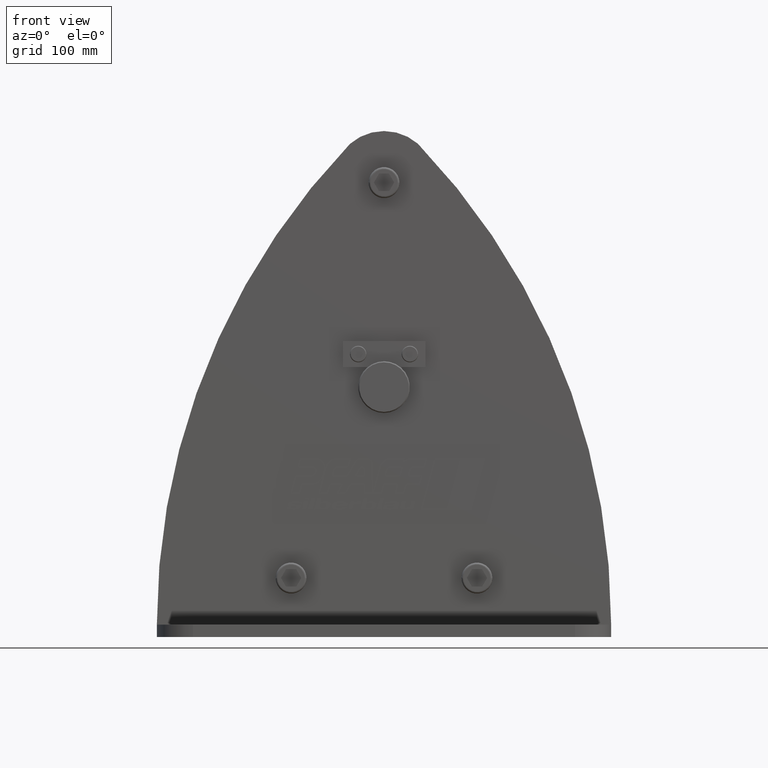
[diagram: clean part render]
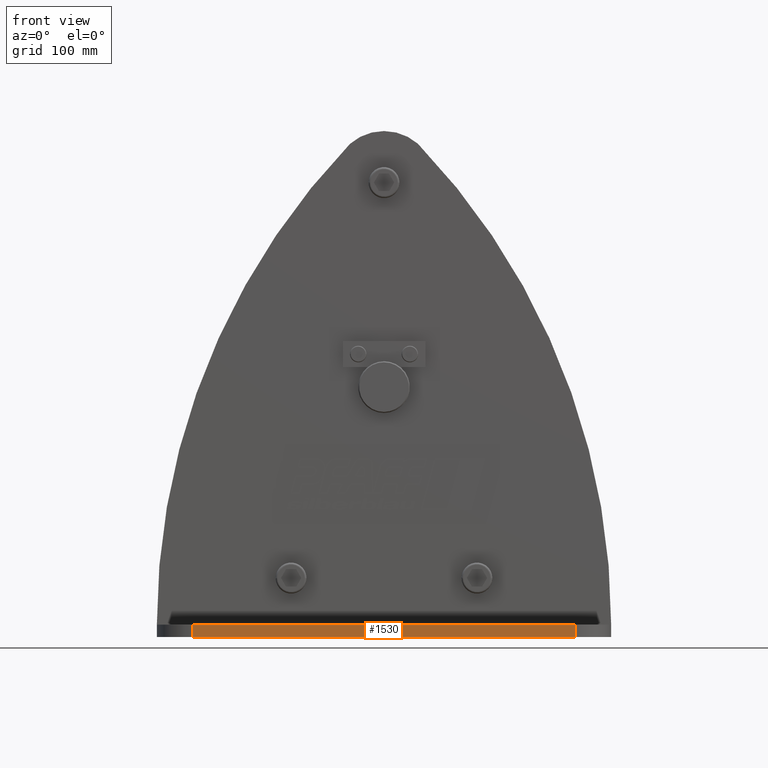
[diagram: same view with one face highlighted and labeled with its STEP entity id]
A machine part, front view. The second image highlights one B-rep face of the part: STEP entity #1530.
In plain terms, the highlighted planar face has unit normal (0, -1, 0).
Its self-contained STEP definition (entity closure, byte-faithful):
#1530=ADVANCED_FACE('',(#3320),#3321,.T.);
#3320=FACE_OUTER_BOUND('',#5352,.T.);
#3321=PLANE('',#5353);
#5352=EDGE_LOOP('',(#10185,#10186,#10187,#10188));
#5353=AXIS2_PLACEMENT_3D('',#10189,#10190,#10191);
#10185=ORIENTED_EDGE('',*,*,#13889,.T.);
#10186=ORIENTED_EDGE('',*,*,#13895,.F.);
#10187=ORIENTED_EDGE('',*,*,#13864,.T.);
#10188=ORIENTED_EDGE('',*,*,#13893,.T.);
#10189=CARTESIAN_POINT('',(0.0,-130.5,-242.0));
#10190=DIRECTION('',(0.0,-1.0,0.0));
#10191=DIRECTION('',(1.0,0.0,0.0));
#13864=EDGE_CURVE('',#17220,#17218,#17221,.T.);
#13889=EDGE_CURVE('',#17257,#17258,#17259,.T.);
#13893=EDGE_CURVE('',#17218,#17257,#17263,.T.);
#13895=EDGE_CURVE('',#17220,#17258,#17265,.T.);
#17218=VERTEX_POINT('',#24771);
#17220=VERTEX_POINT('',#24773);
#17221=LINE('',#24774,#24775);
#17257=VERTEX_POINT('',#24824);
#17258=VERTEX_POINT('',#24825);
#17259=LINE('',#24826,#24827);
#17263=LINE('',#24831,#24832);
#17265=LINE('',#24834,#24835);
#24771=CARTESIAN_POINT('',(184.999999999992,-130.5,-242.0));
#24773=CARTESIAN_POINT('',(-184.999999999992,-130.5,-242.0));
#24774=CARTESIAN_POINT('',(-185.0,-130.5,-242.0));
#24775=VECTOR('',#28987,1.0);
#24824=CARTESIAN_POINT('',(184.999999999992,-130.5,-230.0));
#24825=CARTESIAN_POINT('',(-184.999999999992,-130.5,-230.0));
#24826=CARTESIAN_POINT('',(-185.0,-130.5,-230.0));
#24827=VECTOR('',#29016,1.0);
#24831=CARTESIAN_POINT('',(184.999999999992,-130.5,-242.0));
#24832=VECTOR('',#29023,1.0);
#24834=CARTESIAN_POINT('',(-184.999999999992,-130.5,-242.0));
#24835=VECTOR('',#29024,1.0);
#28987=DIRECTION('',(1.0,0.0,0.0));
#29016=DIRECTION('',(-1.0,-0.0,-0.0));
#29023=DIRECTION('',(0.0,0.0,1.0));
#29024=DIRECTION('',(0.0,0.0,1.0));